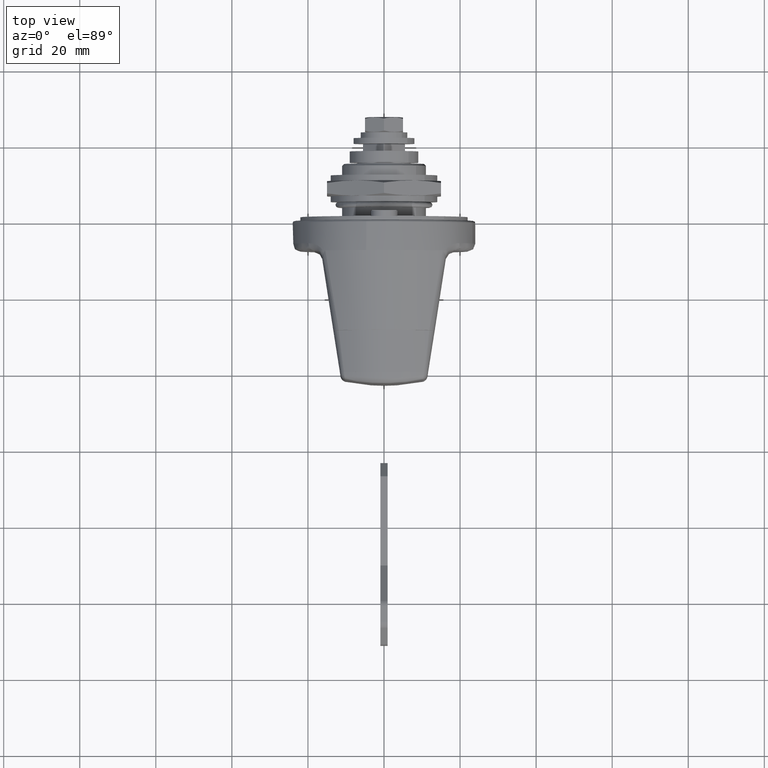
[diagram: clean part render]
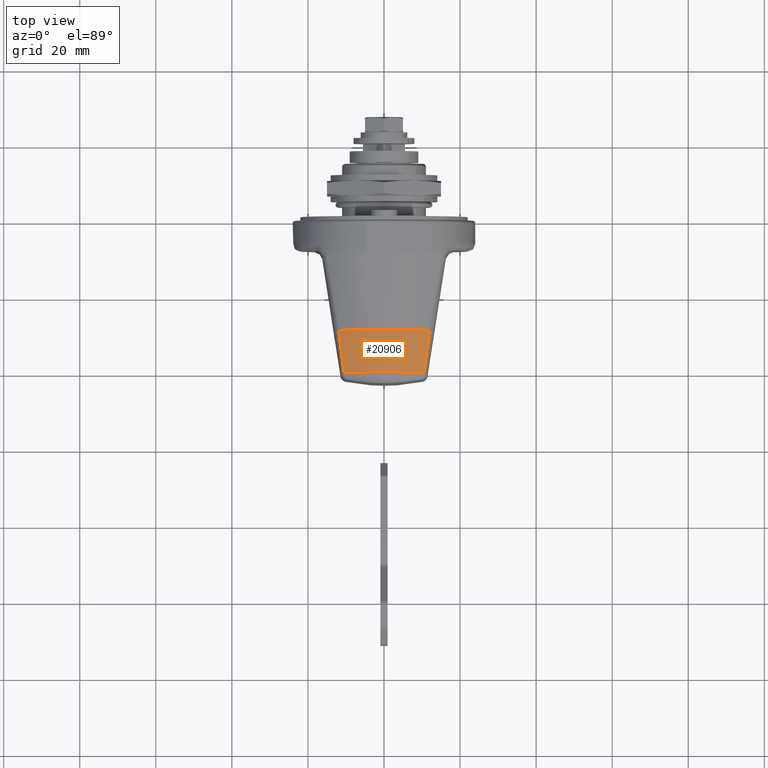
[diagram: same view with one face highlighted and labeled with its STEP entity id]
A machine part, top view. The second image highlights one B-rep face of the part: STEP entity #20906.
In plain terms, the highlighted face is a freeform B-spline surface patch.
Its self-contained STEP definition (entity closure, byte-faithful):
#20503=CARTESIAN_POINT('',(-30.000010000000000,-11.920030882766101,17.893095421248450));
#20504=VERTEX_POINT('',#20503);
#20514=CARTESIAN_POINT('',(-41.0,-10.548890536739860,17.577568331367001));
#20515=VERTEX_POINT('',#20514);
#20516=CARTESIAN_POINT('',(-41.0,-10.548890536739860,17.577568331367001));
#20517=CARTESIAN_POINT('',(-37.333336674259982,-10.996667200276359,17.697595531424302));
#20518=CARTESIAN_POINT('',(-33.666673342226822,-11.454015373130099,17.803018920822090));
#20519=CARTESIAN_POINT('',(-30.000010000000000,-11.920030882766101,17.893095421248450));
#20520=QUASI_UNIFORM_CURVE('',3,(#20516,#20517,#20518,#20519),.UNSPECIFIED.,.F.,.U.);
#20521=EDGE_CURVE('',#20515,#20504,#20520,.T.);
#20568=CARTESIAN_POINT('',(-41.0,10.548890536735399,17.577568331369701));
#20569=VERTEX_POINT('',#20568);
#20579=CARTESIAN_POINT('',(-30.000010000000000,11.920030882764500,17.893095421249551));
#20580=VERTEX_POINT('',#20579);
#20581=CARTESIAN_POINT('',(-30.000010000000000,11.920030882764500,17.893095421249551));
#20582=CARTESIAN_POINT('',(-33.666673342108027,11.454015373133259,17.803018920832919));
#20583=CARTESIAN_POINT('',(-37.333336674200588,10.996667200275590,17.697595531431141));
#20584=CARTESIAN_POINT('',(-41.0,10.548890536735399,17.577568331369701));
#20585=QUASI_UNIFORM_CURVE('',3,(#20581,#20582,#20583,#20584),.UNSPECIFIED.,.F.,.U.);
#20586=EDGE_CURVE('',#20580,#20569,#20585,.T.);
#20864=CARTESIAN_POINT('',(-41.274999749999999,-11.500018723846839,16.940342214700632));
#20865=CARTESIAN_POINT('',(-29.718135256250001,-12.090114312210330,17.809594817353680));
#20866=CARTESIAN_POINT('',(-41.274999749999985,0.583409945702116,25.143225851106340));
#20867=CARTESIAN_POINT('',(-29.718135256250001,0.613346213062474,26.433389546335682));
#20868=CARTESIAN_POINT('',(-41.274999749999999,12.273368368863141,16.388717273849888));
#20869=CARTESIAN_POINT('',(-29.718135256250001,12.903146519902840,17.229664579629620));
#20877=(BOUNDED_SURFACE()B_SPLINE_SURFACE(1,2,((#20864,#20866,#20868),(#20865,#20867,#20869)),.UNSPECIFIED.,.F.,.F.,.U.)B_SPLINE_SURFACE_WITH_KNOTS((2,2),(3,3),(0.0,11.604521955579409),(0.0,27.561627546962189),.UNSPECIFIED.)GEOMETRIC_REPRESENTATION_ITEM()RATIONAL_B_SPLINE_SURFACE(((1.0,0.814115518356319,1.0),(1.0,0.814115518356319,1.0)))REPRESENTATION_ITEM('')SURFACE());
#20878=CARTESIAN_POINT('',(-30.000010000000000,-11.920030882766101,17.893095421248450));
#20879=CARTESIAN_POINT('',(-30.000009999999961,-10.332075910541739,18.951653935134669));
#20880=CARTESIAN_POINT('',(-30.000010000000120,-7.408834982929807,20.379023908883820));
#20881=CARTESIAN_POINT('',(-30.000009999999811,-3.225973543145607,21.356234005192992));
#20882=CARTESIAN_POINT('',(-30.000010000000110,0.066413950318065,21.568032270153399));
#20883=CARTESIAN_POINT('',(-30.000010000000628,3.617766979217413,21.307014292321210));
#20884=CARTESIAN_POINT('',(-30.000009999998390,7.661217854139408,20.283378027688350));
#20885=CARTESIAN_POINT('',(-30.000010000001222,10.551021025595800,18.805473305860779));
#20886=CARTESIAN_POINT('',(-30.000010000000000,11.920030882764500,17.893095421249551));
#20887=B_SPLINE_CURVE_WITH_KNOTS('',3,(#20878,#20879,#20880,#20881,#20882,#20883,#20884,#20885,#20886),.UNSPECIFIED.,.F.,.U.,(4,1,1,1,1,1,4),(0.000000059809427,5.725170949779546,9.673571667178537,12.832250572399920,15.596155151126389,20.334233064258200,25.269724050675791),.UNSPECIFIED.);
#20888=EDGE_CURVE('',#20504,#20580,#20887,.T.);
#20889=ORIENTED_EDGE('',*,*,#20888,.T.);
#20890=ORIENTED_EDGE('',*,*,#20586,.T.);
#20891=CARTESIAN_POINT('',(-41.0,-10.548890536739860,17.577568331367001));
#20892=CARTESIAN_POINT('',(-40.999999999999901,-9.163488162030841,18.409436403100209));
#20893=CARTESIAN_POINT('',(-41.000000000000178,-6.936840816182384,19.409231434691058));
#20894=CARTESIAN_POINT('',(-40.999999999999908,-3.683725468498997,20.222178023343961));
#20895=CARTESIAN_POINT('',(-41.000000000000149,-0.696881933645131,20.577143435214008));
#20896=CARTESIAN_POINT('',(-40.999999999999943,2.488104881216243,20.442527943622469));
#20897=CARTESIAN_POINT('',(-40.999999999999993,6.451979039849209,19.610452273498371));
#20898=CARTESIAN_POINT('',(-40.999999999999922,9.015123331978920,18.498744148913190));
#20899=CARTESIAN_POINT('',(-41.0,10.548890536735399,17.577568331369701));
#20900=B_SPLINE_CURVE_WITH_KNOTS('',3,(#20891,#20892,#20893,#20894,#20895,#20896,#20897,#20898,#20899),.UNSPECIFIED.,.F.,.U.,(4,1,1,1,1,1,4),(0.000000057725632,4.847782341686170,7.271680492931015,10.041872247402329,13.850785304450540,16.794107227752171,22.161294796814499),.UNSPECIFIED.);
#20901=EDGE_CURVE('',#20515,#20569,#20900,.T.);
#20902=ORIENTED_EDGE('',*,*,#20901,.F.);
#20903=ORIENTED_EDGE('',*,*,#20521,.T.);
#20904=EDGE_LOOP('',(#20889,#20890,#20902,#20903));
#20905=FACE_OUTER_BOUND('',#20904,.T.);
#20906=ADVANCED_FACE('',(#20905),#20877,.T.);